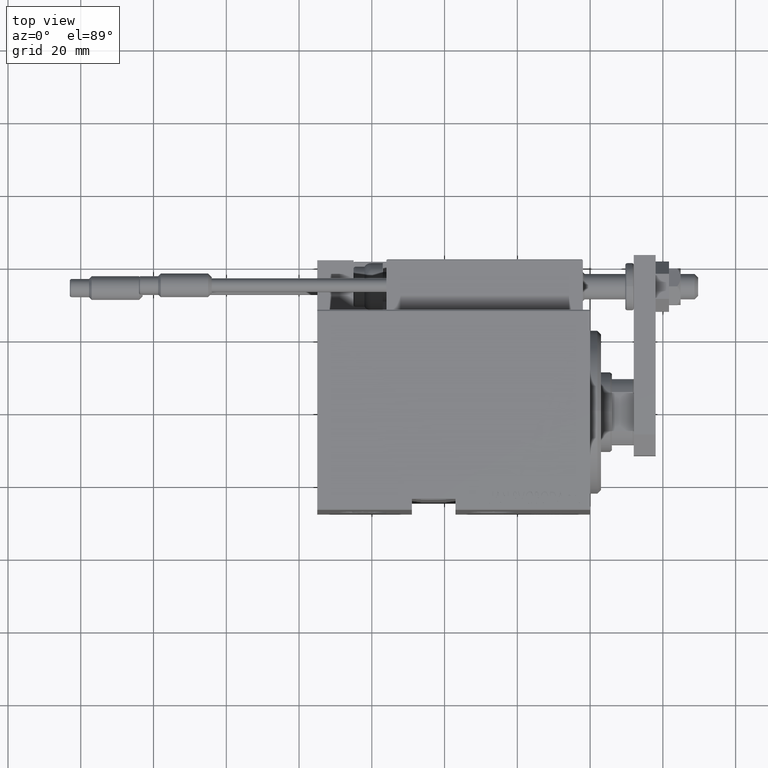
[diagram: clean part render]
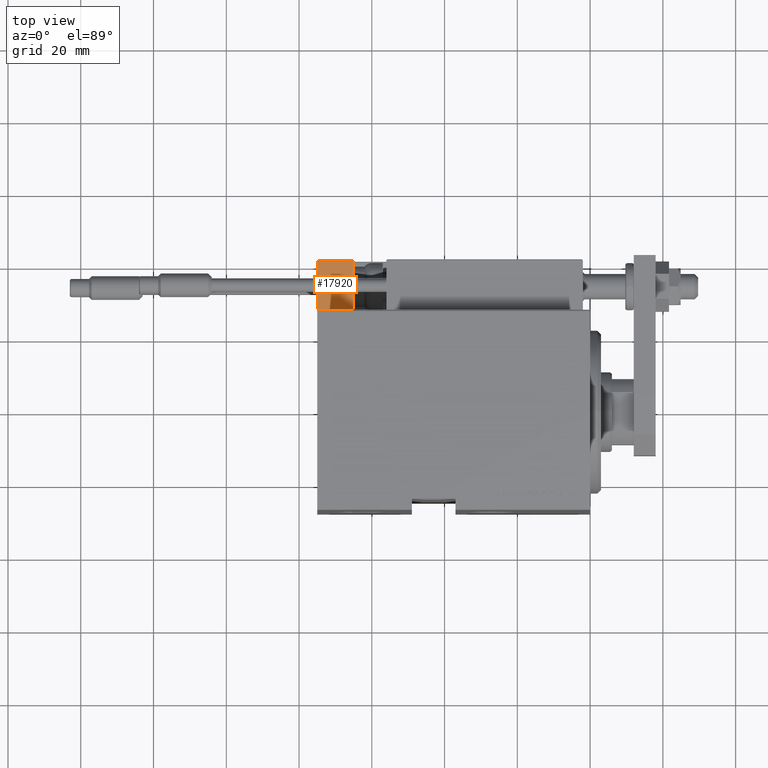
[diagram: same view with one face highlighted and labeled with its STEP entity id]
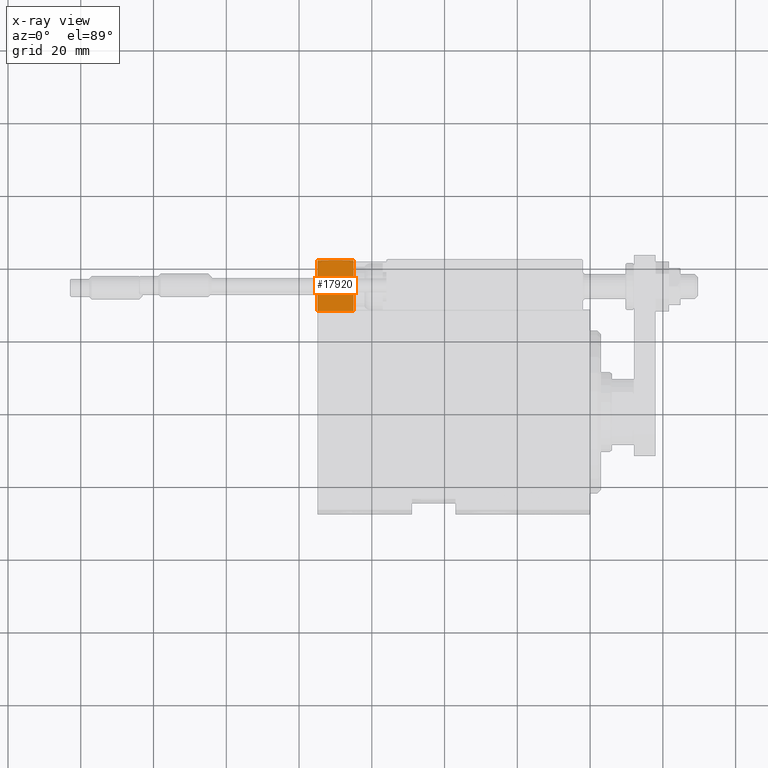
[diagram: x-ray of the same camera — body ghosted, the highlighted face saturated]
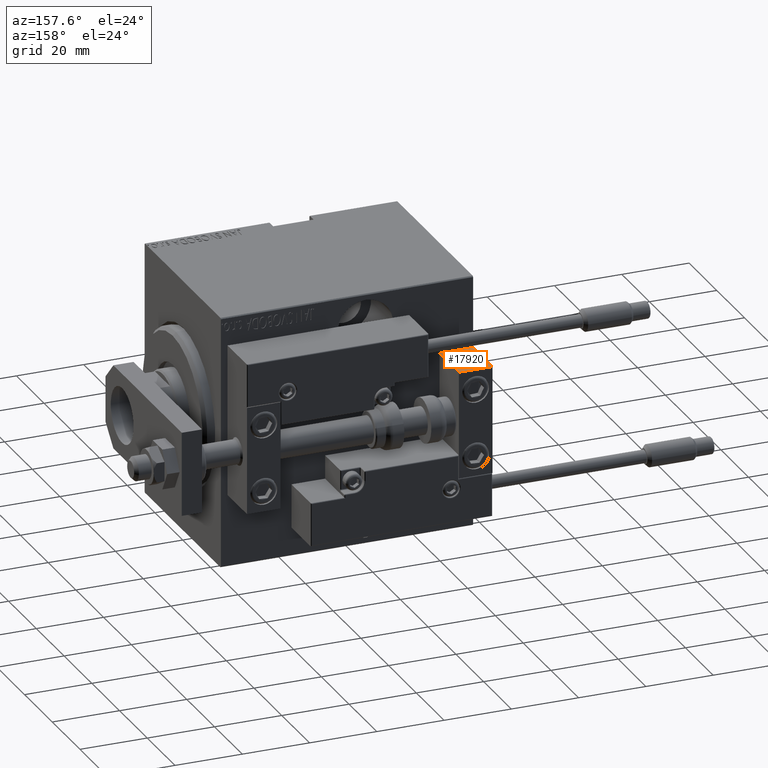
[diagram: same view with one face highlighted and labeled with its STEP entity id]
A machine part, top view. The second image highlights one B-rep face of the part: STEP entity #17920.
The next image is the same camera in x-ray: the body ghosted, the highlighted face saturated — about 0% of this face is hidden behind the body in this view.
A second angle (auxiliary view) of the same face is appended — the face is thin or edge-on in the first view.
In plain terms, the highlighted planar face has unit normal (0, 0, 1).
Its self-contained STEP definition (entity closure, byte-faithful):
#2396 = CARTESIAN_POINT ( 'NONE',  ( 0.000000000000000000, 7.000000000000000000, -16.00000000000000711 ) ) ;
#3403 = EDGE_CURVE ( 'NONE', #19265, #14861, #34974, .T. ) ;
#4494 = DIRECTION ( 'NONE',  ( 0.000000000000000000, 0.000000000000000000, -1.000000000000000000 ) ) ;
#6174 = ORIENTED_EDGE ( 'NONE', *, *, #31217, .T. ) ;
#7529 = CARTESIAN_POINT ( 'NONE',  ( 10.00000000000000000, 7.000000000000000000, -16.00000000000000711 ) ) ;
#7944 = CARTESIAN_POINT ( 'NONE',  ( 10.00000000000000000, -7.000000000000000000, -16.00000000000000711 ) ) ;
#8065 = EDGE_CURVE ( 'NONE', #23841, #19265, #24173, .T. ) ;
#12541 = CARTESIAN_POINT ( 'NONE',  ( 10.00000000000000000, 7.000000000000000000, -16.00000000000000711 ) ) ;
#14432 = CARTESIAN_POINT ( 'NONE',  ( 10.00000000000000000, 7.000000000000000000, -16.00000000000000711 ) ) ;
#14861 = VERTEX_POINT ( 'NONE', #22642 ) ;
#16074 = PLANE ( 'NONE',  #31225 ) ;
#16434 = DIRECTION ( 'NONE',  ( -1.000000000000000000, -0.000000000000000000, -0.000000000000000000 ) ) ;
#17920 = ADVANCED_FACE ( 'NONE', ( #39455 ), #16074, .T. ) ;
#18271 = CARTESIAN_POINT ( 'NONE',  ( 0.000000000000000000, 7.000000000000000000, -16.00000000000000711 ) ) ;
#19265 = VERTEX_POINT ( 'NONE', #2396 ) ;
#22356 = LINE ( 'NONE', #7529, #23604 ) ;
#22642 = CARTESIAN_POINT ( 'NONE',  ( 0.000000000000000000, -7.000000000000000000, -16.00000000000000711 ) ) ;
#23604 = VECTOR ( 'NONE', #49293, 1000.000000000000000 ) ;
#23841 = VERTEX_POINT ( 'NONE', #14432 ) ;
#24173 = LINE ( 'NONE', #31969, #48783 ) ;
#24202 = CARTESIAN_POINT ( 'NONE',  ( 10.00000000000000000, -7.000000000000000000, -16.00000000000000711 ) ) ;
#26781 = EDGE_LOOP ( 'NONE', ( #37611, #36655, #6174, #30483 ) ) ;
#27849 = VERTEX_POINT ( 'NONE', #7944 ) ;
#27891 = DIRECTION ( 'NONE',  ( -1.000000000000000000, 0.000000000000000000, -0.000000000000000000 ) ) ;
#30101 = VECTOR ( 'NONE', #48716, 1000.000000000000000 ) ;
#30483 = ORIENTED_EDGE ( 'NONE', *, *, #40102, .T. ) ;
#31217 = EDGE_CURVE ( 'NONE', #23841, #27849, #22356, .T. ) ;
#31225 = AXIS2_PLACEMENT_3D ( 'NONE', #12541, #4494, #27891 ) ;
#31969 = CARTESIAN_POINT ( 'NONE',  ( 10.00000000000000000, 7.000000000000000000, -16.00000000000000711 ) ) ;
#33885 = VECTOR ( 'NONE', #16434, 1000.000000000000000 ) ;
#34974 = LINE ( 'NONE', #18271, #30101 ) ;
#35268 = DIRECTION ( 'NONE',  ( -1.000000000000000000, -0.000000000000000000, -0.000000000000000000 ) ) ;
#35781 = LINE ( 'NONE', #24202, #33885 ) ;
#36655 = ORIENTED_EDGE ( 'NONE', *, *, #8065, .F. ) ;
#37611 = ORIENTED_EDGE ( 'NONE', *, *, #3403, .F. ) ;
#39455 = FACE_OUTER_BOUND ( 'NONE', #26781, .T. ) ;
#40102 = EDGE_CURVE ( 'NONE', #27849, #14861, #35781, .T. ) ;
#48716 = DIRECTION ( 'NONE',  ( 0.000000000000000000, -1.000000000000000000, 0.000000000000000000 ) ) ;
#48783 = VECTOR ( 'NONE', #35268, 1000.000000000000000 ) ;
#49293 = DIRECTION ( 'NONE',  ( 0.000000000000000000, -1.000000000000000000, 0.000000000000000000 ) ) ;